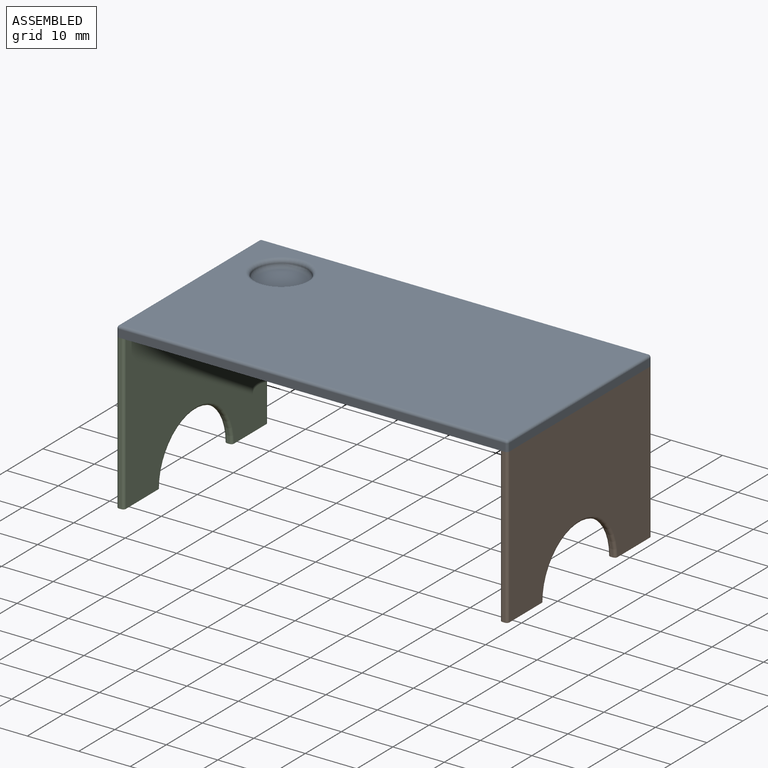
[diagram: assembled view]
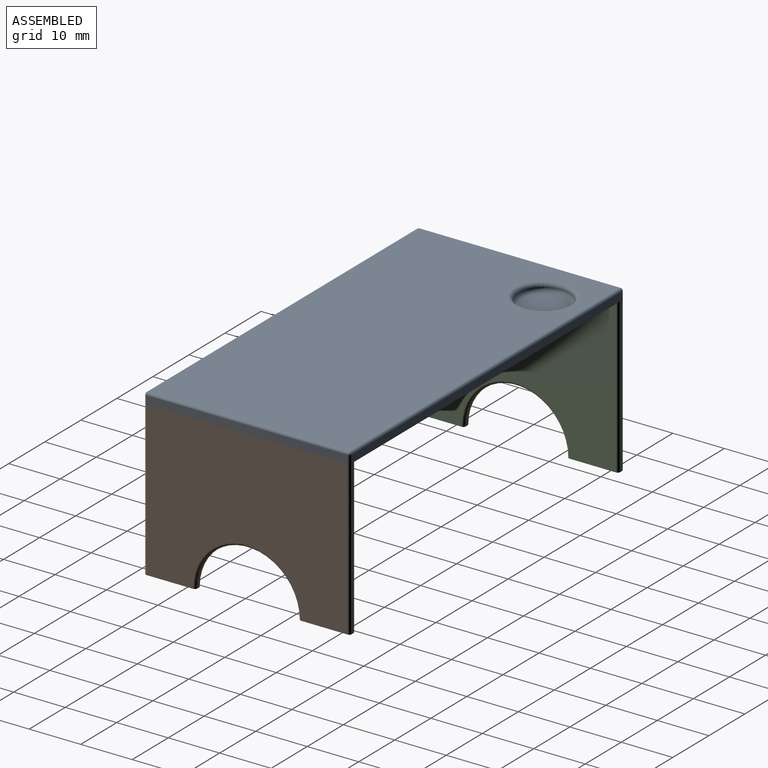
[diagram: assembled view, second angle]
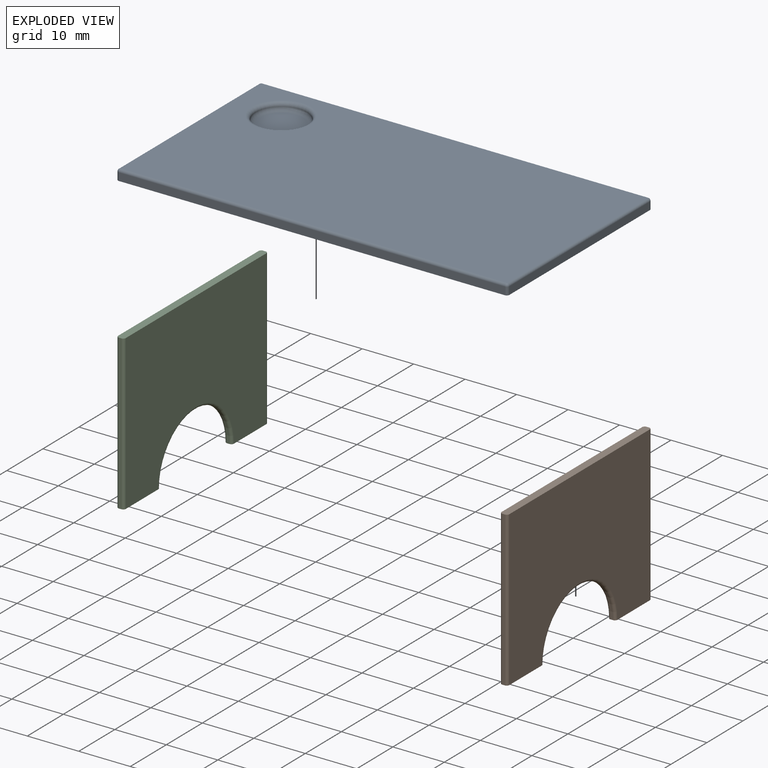
[diagram: exploded view]
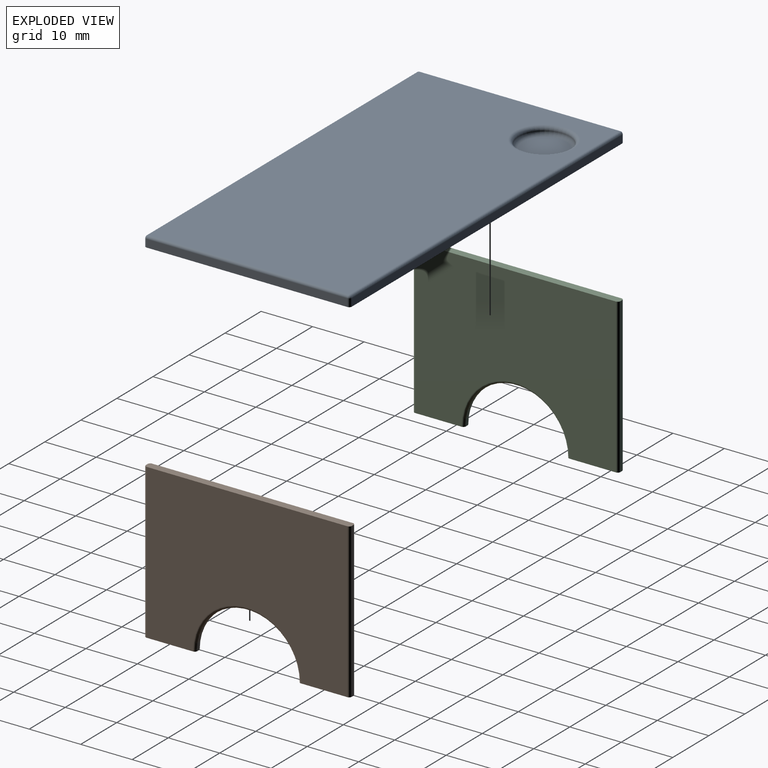
[diagram: exploded view, second angle]
ASSEMBLY  parts=3 mates=2
PART A: 21 faces, bbox 76x40x2 mm
  f0: plane 39x1.5mm, normal (1,0,0), area 58.5mm2, adj f5,f8,f14,f17
  f1: plane 75x1.5mm, normal (0,1,0), area 112.5mm2, adj f5,f11,f15,f17
  f2: plane 39x1.5mm, normal (-1,0,0), area 58.5mm2, adj f5,f6,f10,f11
  f3: plane 75x1.5mm, normal (0,-1,0), area 112.5mm2, adj f5,f6,f8,f9
  f4: plane 75x39mm, normal (0,0,1), area 2821.1mm2, adj f9,f10,f14,f15,f20
  f5: plane 76x40mm, normal (0,0,-1), area 3039.8mm2, adj f0,f1,f2,f3,f6,f8,f11,f17
  f6: cylinder r=0.5mm len=1.5mm, axis (0,0,1), area 1.2mm2, adj f2,f3,f5,f7
  f7: sphere r=0.5mm, area 0.4mm2, adj f6,f9,f10
  f8: cylinder r=0.5mm len=1.5mm, axis (0,0,-1), area 1.2mm2, adj f0,f3,f5,f12
  f9: cylinder r=0.5mm len=75mm, axis (-1,0,0), area 58.9mm2, adj f3,f4,f7,f12
  f10: cylinder r=0.5mm len=39mm, axis (0,1,0), area 30.6mm2, adj f2,f4,f7,f13
  f11: cylinder r=0.5mm len=1.5mm, axis (0,0,-1), area 1.2mm2, adj f1,f2,f5,f13
  f12: sphere r=0.5mm, area 0.4mm2, adj f8,f9,f14
  f13: sphere r=0.5mm, area 0.4mm2, adj f10,f11,f15
  f14: cylinder r=0.5mm len=39mm, axis (0,-1,0), area 30.6mm2, adj f0,f4,f12,f16
  f15: cylinder r=0.5mm len=75mm, axis (1,0,0), area 58.9mm2, adj f1,f4,f13,f16
  f16: sphere r=0.5mm, area 0.4mm2, adj f14,f15,f17
  f17: cylinder r=0.5mm len=1.5mm, axis (0,0,1), area 1.2mm2, adj f0,f1,f5,f16
  f18: plane 8.5x8.5mm, normal (0,0,1), area 56.7mm2, adj f19
  f19: torus R=4.25mm, axis (0,0,1), area 35mm2, adj f18,f20
  f20: torus R=5.75mm, axis (0,0,1), area 39mm2, adj f4,f19
PART B: 14 faces, bbox 40x1.5x30 mm
  f0: plane 30x0.5mm, normal (1,0,0), area 15mm2, adj f1,f5,f10,f13
  f1: plane 40x1.5mm, normal (0,0,1), area 59.8mm2, adj f0,f2,f6,f7,f9,f10,f12,f13
  f2: plane 30x0.5mm, normal (-1,0,0), area 15mm2, adj f1,f3,f9,f12
  f3: plane 10x1.5mm, normal (0,0,-1), area 14.8mm2, adj f2,f4,f6,f7,f8,f9,f11,f12
  f4: cylinder r=10mm len=20mm, axis (0,1,0), area 15.7mm2, adj f3,f5,f8,f11
  f5: plane 10x1.5mm, normal (0,0,-1), area 14.8mm2, adj f0,f4,f6,f7,f8,f10,f11,f13
  f6: plane 39x30mm, normal (0,-1,0), area 996.8mm2, adj f1,f3,f5,f11,f12,f13
  f7: plane 39x30mm, normal (0,1,0), area 996.8mm2, adj f1,f3,f5,f8,f9,f10
  f8: torus R=10.5mm, axis (0,-1,0), area 25.1mm2, adj f3,f4,f5,f7
  f9: cylinder r=0.5mm len=30mm, axis (0,0,-1), area 23.6mm2, adj f1,f2,f3,f7
  f10: cylinder r=0.5mm len=30mm, axis (0,0,1), area 23.6mm2, adj f0,f1,f5,f7
  f11: torus R=10.5mm, axis (0,-1,0), area 25.1mm2, adj f3,f4,f5,f6
  f12: cylinder r=0.5mm len=30mm, axis (0,0,1), area 23.6mm2, adj f1,f2,f3,f6
  f13: cylinder r=0.5mm len=30mm, axis (0,0,-1), area 23.6mm2, adj f0,f1,f5,f6
PART C: same geometry as B
PLACE A rot(axis=(0.78,0.59,0.2),0deg) t=(-4.47,-13.22,9.24)mm
PLACE B rot(axis=(0,0,-1),90deg) t=(33.53,-13.22,-5.76)mm
PLACE C rot(axis=(0,0,-1),90deg) t=(-40.97,-13.22,-5.76)mm
MATE fastened C.f13 <-> A.f6  axis (0,0,1) through (-41.97,-32.72,9.24)mm
MATE fastened B.f10 <-> A.f8  axis (0,0,1) through (33.03,-32.72,9.24)mm
